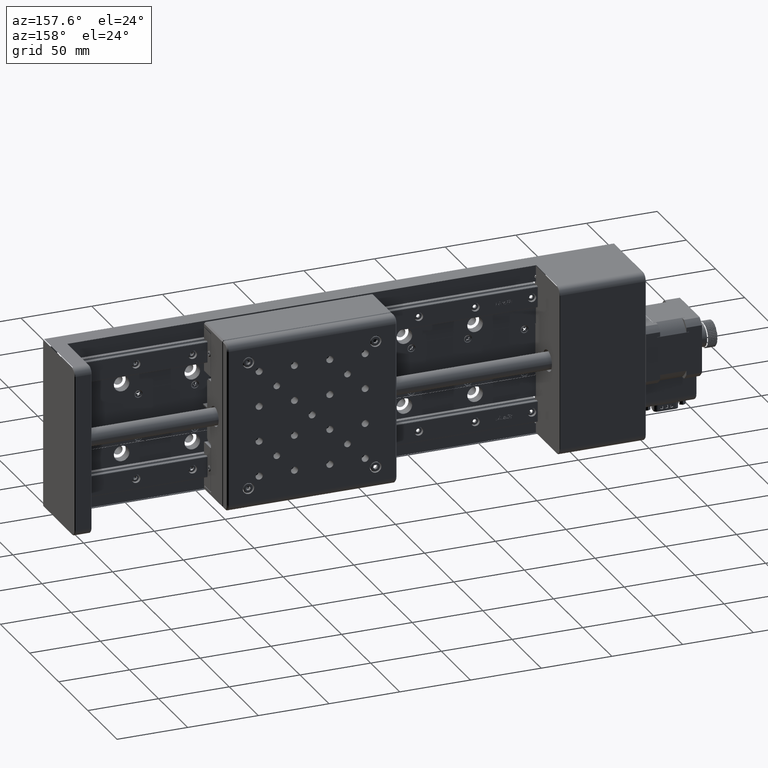
[diagram: clean part render]
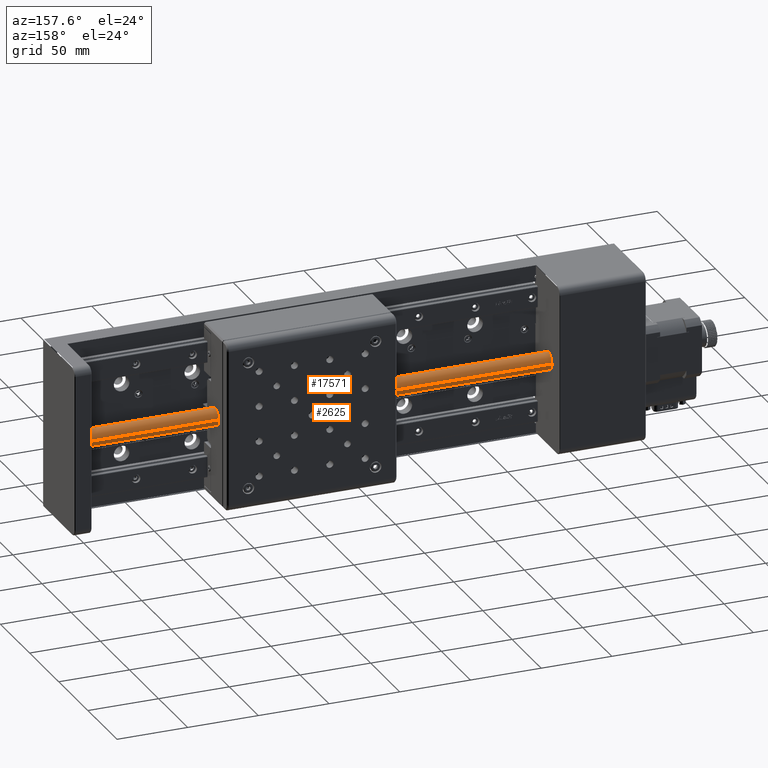
[diagram: same view with one multi-face feature highlighted, each face labeled with its STEP entity id]
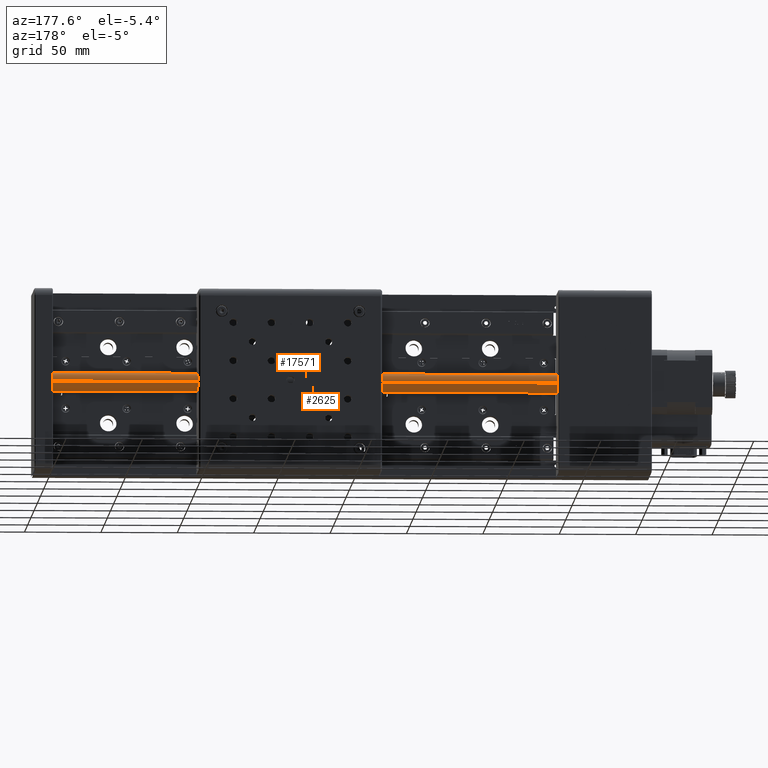
[diagram: same view with one multi-face feature highlighted, each face labeled with its STEP entity id]
A machine part, auxiliary view. The highlighted faces form ONE feature: a constant-radius fillet chain: 2 tangent blend faces with common blend radius 6 mm. The faces share edges in the B-rep.
A second angle (auxiliary view) of the same feature is appended — it is thin or edge-on in the first view.
Their STEP definitions:
[1] entity #2625 (Cylinder):
#2625 = ADVANCED_FACE ( 'NONE', ( #38547 ), #10213, .T. ) ;
#2891 = ORIENTED_EDGE ( 'NONE', *, *, #20521, .F. ) ;
#3059 = EDGE_CURVE ( 'NONE', #42134, #39636, #14479, .T. ) ;
#5169 = CARTESIAN_POINT ( 'NONE',  ( -1140.755485603264800, 28.00000000001512700, -349.9134800466584900 ) ) ;
#5309 = DIRECTION ( 'NONE',  ( -1.000000000000000000, 1.083439256914691100E-016, 1.052650501383985200E-014 ) ) ;
#5951 = DIRECTION ( 'NONE',  ( -1.000000000000000000, 1.083439256914691100E-016, 1.052650501383985200E-014 ) ) ;
#9993 = LINE ( 'NONE', #31129, #36415 ) ;
#10213 = CYLINDRICAL_SURFACE ( 'NONE', #19563, 6.000000000000005300 ) ;
#11399 = EDGE_CURVE ( 'NONE', #42134, #43833, #22506, .T. ) ;
#12392 = EDGE_LOOP ( 'NONE', ( #31834, #28118, #2891, #39117 ) ) ;
#13893 = AXIS2_PLACEMENT_3D ( 'NONE', #48288, #5309, #17007 ) ;
#14479 = LINE ( 'NONE', #29485, #27387 ) ;
#14758 = CARTESIAN_POINT ( 'NONE',  ( -803.7554856032647900, 34.00000000001509200, -349.9134800466604200 ) ) ;
#17007 = DIRECTION ( 'NONE',  ( 0.0000000000000000000, 1.000000000000000000, -1.850371707708592600E-014 ) ) ;
#18214 = DIRECTION ( 'NONE',  ( 0.0000000000000000000, 1.000000000000000000, -1.850371707708592600E-014 ) ) ;
#19563 = AXIS2_PLACEMENT_3D ( 'NONE', #14758, #46223, #18214 ) ;
#20521 = EDGE_CURVE ( 'NONE', #49660, #39636, #45110, .T. ) ;
#20600 = DIRECTION ( 'NONE',  ( 1.000000000000000000, -1.083439256914691100E-016, -1.052650501383985200E-014 ) ) ;
#21228 = EDGE_CURVE ( 'NONE', #43833, #49660, #9993, .T. ) ;
#22506 = CIRCLE ( 'NONE', #35004, 6.000000000000001800 ) ;
#27387 = VECTOR ( 'NONE', #5951, 1000.000000000000000 ) ;
#28118 = ORIENTED_EDGE ( 'NONE', *, *, #3059, .T. ) ;
#29109 = CARTESIAN_POINT ( 'NONE',  ( -1140.755485603264800, 40.00000000001513500, -349.9134800466569600 ) ) ;
#29485 = CARTESIAN_POINT ( 'NONE',  ( -803.7554856032647900, 28.00000000001509200, -349.9134800466603100 ) ) ;
#31129 = CARTESIAN_POINT ( 'NONE',  ( -803.7554856032647900, 40.00000000001509900, -349.9134800466604800 ) ) ;
#31834 = ORIENTED_EDGE ( 'NONE', *, *, #11399, .F. ) ;
#35004 = AXIS2_PLACEMENT_3D ( 'NONE', #48088, #20600, #37075 ) ;
#36415 = VECTOR ( 'NONE', #38561, 1000.000000000000000 ) ;
#37075 = DIRECTION ( 'NONE',  ( 0.0000000000000000000, -1.000000000000000000, 1.850371707708593800E-014 ) ) ;
#38547 = FACE_OUTER_BOUND ( 'NONE', #12392, .T. ) ;
#38561 = DIRECTION ( 'NONE',  ( -1.000000000000000000, 1.083439256914691100E-016, 1.052650501383985200E-014 ) ) ;
#39117 = ORIENTED_EDGE ( 'NONE', *, *, #21228, .F. ) ;
#39636 = VERTEX_POINT ( 'NONE', #5169 ) ;
#42134 = VERTEX_POINT ( 'NONE', #48234 ) ;
#43833 = VERTEX_POINT ( 'NONE', #45383 ) ;
#45110 = CIRCLE ( 'NONE', #13893, 6.000000000000005300 ) ;
#45383 = CARTESIAN_POINT ( 'NONE',  ( -803.7554856032647900, 40.00000000001509200, -349.9134800466587200 ) ) ;
#46223 = DIRECTION ( 'NONE',  ( -1.000000000000000000, 1.083439256914691100E-016, 1.052650501383985200E-014 ) ) ;
#48088 = CARTESIAN_POINT ( 'NONE',  ( -803.7554856032647900, 34.00000000001509200, -349.9134800466604200 ) ) ;
#48234 = CARTESIAN_POINT ( 'NONE',  ( -803.7554856032647900, 28.00000000001509500, -349.9134800466584900 ) ) ;
#48288 = CARTESIAN_POINT ( 'NONE',  ( -1140.755485603264800, 34.00000000001512700, -349.9134800466568400 ) ) ;
#49660 = VERTEX_POINT ( 'NONE', #29109 ) ;
[2] entity #17571 (Cylinder):
#1480 = DIRECTION ( 'NONE',  ( 0.0000000000000000000, 1.000000000000000000, -1.850371707708592600E-014 ) ) ;
#1877 = ORIENTED_EDGE ( 'NONE', *, *, #6371, .F. ) ;
#3059 = EDGE_CURVE ( 'NONE', #42134, #39636, #14479, .T. ) ;
#3122 = DIRECTION ( 'NONE',  ( 1.000000000000000000, -1.083439256914691100E-016, -1.052650501383985200E-014 ) ) ;
#3584 = AXIS2_PLACEMENT_3D ( 'NONE', #6657, #18505, #23801 ) ;
#5169 = CARTESIAN_POINT ( 'NONE',  ( -1140.755485603264800, 28.00000000001512700, -349.9134800466584900 ) ) ;
#5951 = DIRECTION ( 'NONE',  ( -1.000000000000000000, 1.083439256914691100E-016, 1.052650501383985200E-014 ) ) ;
#6371 = EDGE_CURVE ( 'NONE', #43833, #42134, #14144, .T. ) ;
#6657 = CARTESIAN_POINT ( 'NONE',  ( -803.7554856032647900, 34.00000000001509200, -349.9134800466604200 ) ) ;
#9993 = LINE ( 'NONE', #31129, #36415 ) ;
#10437 = EDGE_LOOP ( 'NONE', ( #15186, #1877, #39155, #37297 ) ) ;
#14144 = CIRCLE ( 'NONE', #29861, 6.000000000000001800 ) ;
#14479 = LINE ( 'NONE', #29485, #27387 ) ;
#15186 = ORIENTED_EDGE ( 'NONE', *, *, #3059, .F. ) ;
#17441 = DIRECTION ( 'NONE',  ( -1.000000000000000000, 1.083439256914691100E-016, 1.052650501383985200E-014 ) ) ;
#17571 = ADVANCED_FACE ( 'NONE', ( #50830 ), #37283, .T. ) ;
#17872 = CIRCLE ( 'NONE', #19470, 6.000000000000005300 ) ;
#18505 = DIRECTION ( 'NONE',  ( -1.000000000000000000, 1.083439256914691100E-016, 1.052650501383985200E-014 ) ) ;
#19470 = AXIS2_PLACEMENT_3D ( 'NONE', #32912, #17441, #1480 ) ;
#21228 = EDGE_CURVE ( 'NONE', #43833, #49660, #9993, .T. ) ;
#23801 = DIRECTION ( 'NONE',  ( 0.0000000000000000000, 1.000000000000000000, -1.850371707708592600E-014 ) ) ;
#26634 = CARTESIAN_POINT ( 'NONE',  ( -803.7554856032647900, 34.00000000001509200, -349.9134800466604200 ) ) ;
#27387 = VECTOR ( 'NONE', #5951, 1000.000000000000000 ) ;
#29109 = CARTESIAN_POINT ( 'NONE',  ( -1140.755485603264800, 40.00000000001513500, -349.9134800466569600 ) ) ;
#29485 = CARTESIAN_POINT ( 'NONE',  ( -803.7554856032647900, 28.00000000001509200, -349.9134800466603100 ) ) ;
#29861 = AXIS2_PLACEMENT_3D ( 'NONE', #26634, #3122, #50159 ) ;
#31129 = CARTESIAN_POINT ( 'NONE',  ( -803.7554856032647900, 40.00000000001509900, -349.9134800466604800 ) ) ;
#32912 = CARTESIAN_POINT ( 'NONE',  ( -1140.755485603264800, 34.00000000001512700, -349.9134800466568400 ) ) ;
#36415 = VECTOR ( 'NONE', #38561, 1000.000000000000000 ) ;
#37283 = CYLINDRICAL_SURFACE ( 'NONE', #3584, 6.000000000000005300 ) ;
#37297 = ORIENTED_EDGE ( 'NONE', *, *, #39028, .F. ) ;
#38561 = DIRECTION ( 'NONE',  ( -1.000000000000000000, 1.083439256914691100E-016, 1.052650501383985200E-014 ) ) ;
#39028 = EDGE_CURVE ( 'NONE', #39636, #49660, #17872, .T. ) ;
#39155 = ORIENTED_EDGE ( 'NONE', *, *, #21228, .T. ) ;
#39636 = VERTEX_POINT ( 'NONE', #5169 ) ;
#42134 = VERTEX_POINT ( 'NONE', #48234 ) ;
#43833 = VERTEX_POINT ( 'NONE', #45383 ) ;
#45383 = CARTESIAN_POINT ( 'NONE',  ( -803.7554856032647900, 40.00000000001509200, -349.9134800466587200 ) ) ;
#48234 = CARTESIAN_POINT ( 'NONE',  ( -803.7554856032647900, 28.00000000001509500, -349.9134800466584900 ) ) ;
#49660 = VERTEX_POINT ( 'NONE', #29109 ) ;
#50159 = DIRECTION ( 'NONE',  ( 0.0000000000000000000, -1.000000000000000000, 1.850371707708593800E-014 ) ) ;
#50830 = FACE_OUTER_BOUND ( 'NONE', #10437, .T. ) ;